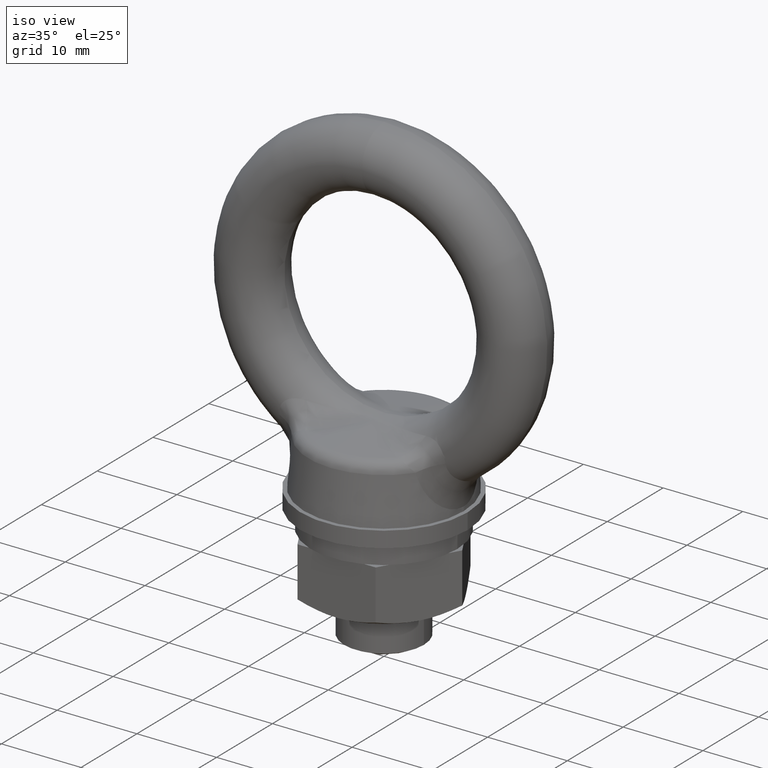
[diagram: clean part render]
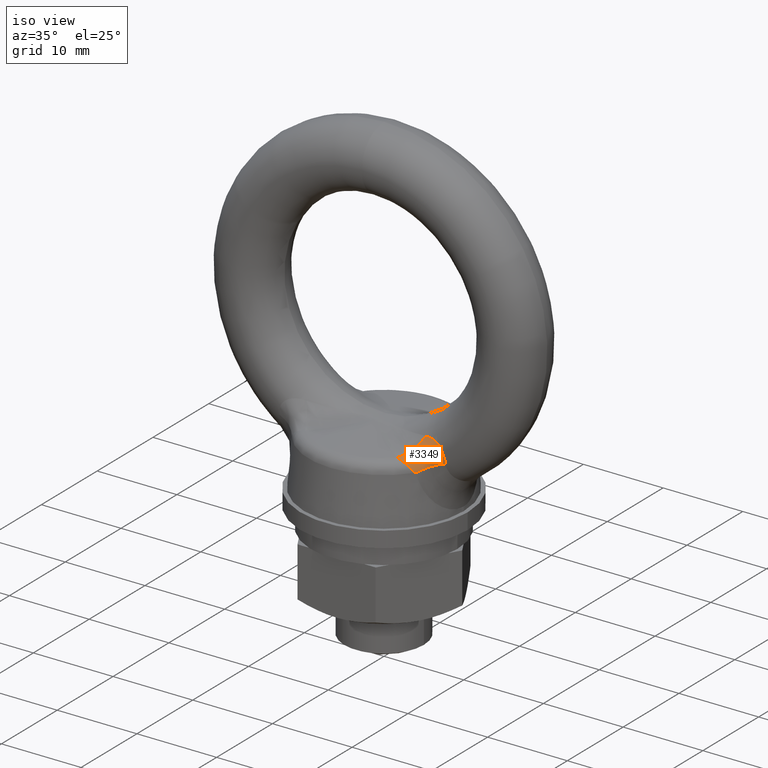
[diagram: same view with one face highlighted and labeled with its STEP entity id]
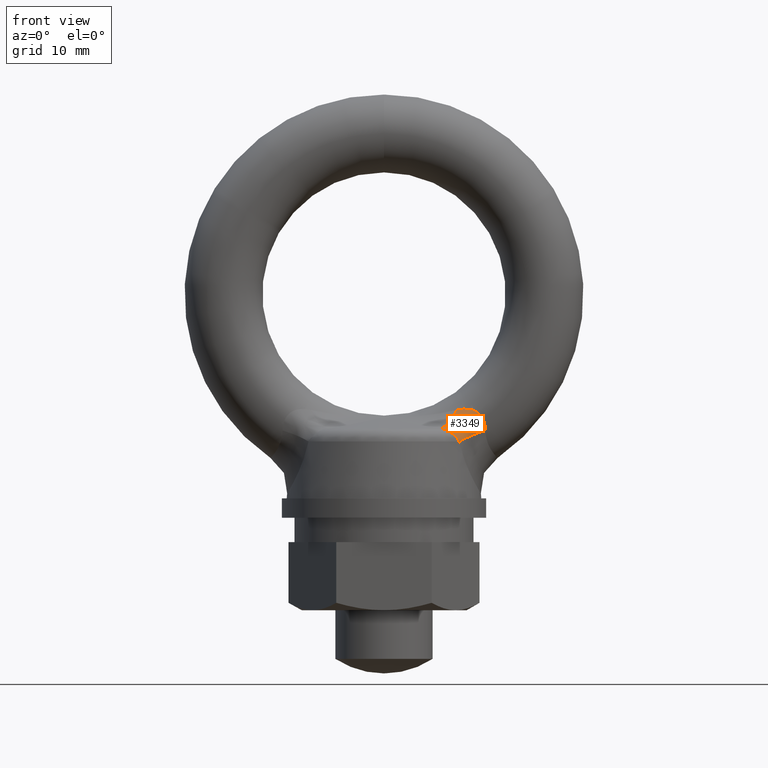
[diagram: same view with one face highlighted and labeled with its STEP entity id]
A machine part, iso view. The second image highlights one B-rep face of the part: STEP entity #3349.
A second angle (front view) of the same face is appended — the face is thin or edge-on in the first view.
In plain terms, the highlighted face is a freeform B-spline surface patch.
Its self-contained STEP definition (entity closure, byte-faithful):
#1272 = CARTESIAN_POINT ( 'NONE',  ( 8.841983585186628900, -3.869420326673615100, -12.51382755219898600 ) ) ;
#2078 = CARTESIAN_POINT ( 'NONE',  ( 8.370045951019761800, -4.089857299387873000, -12.98121149840897600 ) ) ;
#2079 = CARTESIAN_POINT ( 'NONE',  ( 8.606014768103195300, -3.979638813030744100, -12.74751952530398200 ) ) ;
#2397 = CARTESIAN_POINT ( 'NONE',  ( 6.970524031563781100, -5.083405044204566200, -13.74608842458921900 ) ) ;
#2398 = CARTESIAN_POINT ( 'NONE',  ( 7.171332028845564600, -4.825929129782383400, -13.62908521966813100 ) ) ;
#2399 = CARTESIAN_POINT ( 'NONE',  ( 7.381796832693930300, -4.592841371309378800, -13.47506101107012100 ) ) ;
#2400 = CARTESIAN_POINT ( 'NONE',  ( 7.594868894496075400, -4.391949355301658600, -13.28917493161607100 ) ) ;
#2401 = CARTESIAN_POINT ( 'NONE',  ( 7.807940956298220500, -4.191057339293939400, -13.10328885216201800 ) ) ;
#2402 = CARTESIAN_POINT ( 'NONE',  ( 8.023587857649676600, -4.022391634049138400, -12.88556918538355400 ) ) ;
#2403 = CARTESIAN_POINT ( 'NONE',  ( 8.234586550333753900, -3.891602041091073000, -12.64330865533686100 ) ) ;
#2404 = CARTESIAN_POINT ( 'NONE',  ( 8.445585243017831100, -3.760812448133007200, -12.40104812529017100 ) ) ;
#2405 = CARTESIAN_POINT ( 'NONE',  ( 8.651903624734997000, -3.667918870023532600, -12.13428359374502100 ) ) ;
#2406 = CARTESIAN_POINT ( 'NONE',  ( 8.846631172776035600, -3.616033133513496500, -11.85195064580663900 ) ) ;
#2407 = CARTESIAN_POINT ( 'NONE',  ( 6.379380172285253000, -5.918322773583850200, -13.97342918919181400 ) ) ;
#2408 = CARTESIAN_POINT ( 'NONE',  ( 6.554224723277949100, -5.622000095083545400, -13.93425307295124700 ) ) ;
#2409 = CARTESIAN_POINT ( 'NONE',  ( 6.744672345454894500, -5.340187463292431300, -13.85519345982073400 ) ) ;
#2410 = CARTESIAN_POINT ( 'NONE',  ( 6.944364447917087600, -5.082293928401037800, -13.73888996131541300 ) ) ;
#2411 = CARTESIAN_POINT ( 'NONE',  ( 7.144056550379281700, -4.824400393509643300, -13.62258646281009300 ) ) ;
#2412 = CARTESIAN_POINT ( 'NONE',  ( 7.352962946227691500, -4.590464940565468100, -13.46905666020596300 ) ) ;
#2413 = CARTESIAN_POINT ( 'NONE',  ( 7.564108750230354300, -4.388298115192765400, -13.28342654664698400 ) ) ;
#2414 = CARTESIAN_POINT ( 'NONE',  ( 7.775254554233017100, -4.186131289820062700, -13.09779643308800500 ) ) ;
#2415 = CARTESIAN_POINT ( 'NONE',  ( 7.988607848066733300, -4.015763653014839300, -12.88009406976151200 ) ) ;
#2416 = CARTESIAN_POINT ( 'NONE',  ( 8.197045275204727600, -3.882883372959457200, -12.63758801822955000 ) ) ;
#2417 = CARTESIAN_POINT ( 'NONE',  ( 8.405482702342721900, -3.750003092904075100, -12.39508196669758700 ) ) ;
#2418 = CARTESIAN_POINT ( 'NONE',  ( 8.608972753879582400, -3.654630256740430300, -12.12780888592464200 ) ) ;
#2419 = CARTESIAN_POINT ( 'NONE',  ( 8.800721383373836900, -3.599949135509085800, -11.84469238524499900 ) ) ;
#2420 = CARTESIAN_POINT ( 'NONE',  ( 6.282645612345965500, -5.913854930285774400, -13.93393299831904900 ) ) ;
#2421 = CARTESIAN_POINT ( 'NONE',  ( 6.456742029528881800, -5.619177067667079600, -13.89904125018613700 ) ) ;
#2422 = CARTESIAN_POINT ( 'NONE',  ( 6.644497590146483100, -5.337413481955155500, -13.82360078106242400 ) ) ;
#2423 = CARTESIAN_POINT ( 'NONE',  ( 6.839726113330315500, -5.077849465186919700, -13.71009610822018500 ) ) ;
#2424 = CARTESIAN_POINT ( 'NONE',  ( 7.034954636514148000, -4.818285448418684800, -13.59659143537794400 ) ) ;
#2425 = CARTESIAN_POINT ( 'NONE',  ( 7.237627400362735700, -4.580959217589825300, -13.44503925674932700 ) ) ;
#2426 = CARTESIAN_POINT ( 'NONE',  ( 7.441068173167468400, -4.373693154757193100, -13.26043300677063600 ) ) ;
#2427 = CARTESIAN_POINT ( 'NONE',  ( 7.644508945972201100, -4.166427091924560100, -13.07582675679194600 ) ) ;
#2428 = CARTESIAN_POINT ( 'NONE',  ( 7.848687809734954600, -3.989251728877644800, -12.85819360727335500 ) ) ;
#2429 = CARTESIAN_POINT ( 'NONE',  ( 8.046880174688615400, -3.848008700432994800, -12.61470546980030400 ) ) ;
#2430 = CARTESIAN_POINT ( 'NONE',  ( 8.245072539642276200, -3.706765671988345300, -12.37121733232725500 ) ) ;
#2431 = CARTESIAN_POINT ( 'NONE',  ( 8.437249270457934700, -3.601475803608023400, -12.10191005464312000 ) ) ;
#2432 = CARTESIAN_POINT ( 'NONE',  ( 8.617082225765045700, -3.535613143491442400, -11.81565934299844000 ) ) ;
#2433 = CARTESIAN_POINT ( 'NONE',  ( 6.183542535816361200, -5.907311976956903800, -13.90103040921706800 ) ) ;
#2434 = CARTESIAN_POINT ( 'NONE',  ( 6.355532464501028900, -5.614790114137882400, -13.86988913302158000 ) ) ;
#2435 = CARTESIAN_POINT ( 'NONE',  ( 6.539194245067546000, -5.333478536832755500, -13.79801297531653000 ) ) ;
#2436 = CARTESIAN_POINT ( 'NONE',  ( 6.728593712308804000, -5.072472780250167000, -13.68772317356243200 ) ) ;
#2437 = CARTESIAN_POINT ( 'NONE',  ( 6.917993179550061100, -4.811467023667579400, -13.57743337180833600 ) ) ;
#2438 = CARTESIAN_POINT ( 'NONE',  ( 7.113103556665288700, -4.570804062282526600, -13.42874552155987200 ) ) ;
#2439 = CARTESIAN_POINT ( 'NONE',  ( 7.307622806203906600, -4.358267880038724200, -13.24646439833315300 ) ) ;
#2440 = CARTESIAN_POINT ( 'NONE',  ( 7.502142055742524500, -4.145731697794921000, -13.06418327510643200 ) ) ;
#2441 = CARTESIAN_POINT ( 'NONE',  ( 7.696042693052084400, -3.961352428956096600, -12.84833467114093400 ) ) ;
#2442 = CARTESIAN_POINT ( 'NONE',  ( 7.883063485925592100, -3.811097064944404700, -12.60589518167442000 ) ) ;
#2443 = CARTESIAN_POINT ( 'NONE',  ( 8.070084278799100700, -3.660841700932712300, -12.36345569220790500 ) ) ;
#2444 = CARTESIAN_POINT ( 'NONE',  ( 8.250198816058162500, -3.544731579599887300, -12.09445963341230300 ) ) ;
#2451 = CARTESIAN_POINT ( 'NONE',  ( 7.712984351846232700, -4.406145092857843600, -13.31678318877653100 ) ) ;
#2452 = CARTESIAN_POINT ( 'NONE',  ( 7.933161534118582400, -4.210271695263409200, -13.13052384520254300 ) ) ;
#2453 = CARTESIAN_POINT ( 'NONE',  ( 8.157431640018172600, -4.048211121742867600, -12.91358944201815500 ) ) ;
#2454 = CARTESIAN_POINT ( 'NONE',  ( 8.378206794081071600, -3.925446650745108000, -12.67331979886312100 ) ) ;
#2455 = CARTESIAN_POINT ( 'NONE',  ( 8.598981948143970700, -3.802682179747348000, -12.43305015570808400 ) ) ;
#2456 = CARTESIAN_POINT ( 'NONE',  ( 8.816227871252959100, -3.719232874290632700, -12.16948258032621400 ) ) ;
#2457 = CARTESIAN_POINT ( 'NONE',  ( 9.022594381105642800, -3.677922302619829800, -11.89153472671224400 ) ) ;
#2458 = CARTESIAN_POINT ( 'NONE',  ( 6.475398582678666400, -5.922082385669725100, -14.01500711606946400 ) ) ;
#2459 = CARTESIAN_POINT ( 'NONE',  ( 6.650588110095726300, -5.624294011850067500, -13.97138888570006700 ) ) ;
#2460 = CARTESIAN_POINT ( 'NONE',  ( 6.843306504536192500, -5.342573439883157200, -13.88870019687902300 ) ) ;
#2461 = CARTESIAN_POINT ( 'NONE',  ( 7.047047274869645300, -5.086432087716557000, -13.76973269775321100 ) ) ;
#2462 = CARTESIAN_POINT ( 'NONE',  ( 7.250788045203097300, -4.830290735549956700, -13.65076519862739900 ) ) ;
#2463 = CARTESIAN_POINT ( 'NONE',  ( 7.465519693092278300, -4.599768203937126800, -13.49553728150981000 ) ) ;
#2464 = CARTESIAN_POINT ( 'NONE',  ( 7.683992593956031800, -4.402647437691649100, -13.30928969921900800 ) ) ;
#2465 = CARTESIAN_POINT ( 'NONE',  ( 7.902465494819784600, -4.205526671446172300, -13.12304211692820400 ) ) ;
#2466 = CARTESIAN_POINT ( 'NONE',  ( 8.124645873320954300, -4.041838147145044900, -12.90580366395749600 ) ) ;
#2467 = CARTESIAN_POINT ( 'NONE',  ( 8.343032685935792600, -3.917108435376133600, -12.66490873384484000 ) ) ;
#2468 = CARTESIAN_POINT ( 'NONE',  ( 8.561419498550632700, -3.792378723607222800, -12.42401380373218500 ) ) ;
#2469 = CARTESIAN_POINT ( 'NONE',  ( 8.775978983771269200, -3.706627109607389900, -12.15949964011317500 ) ) ;
#2470 = CARTESIAN_POINT ( 'NONE',  ( 8.979467442360276100, -3.662748927889112300, -11.88029680396780200 ) ) ;
#2471 = CARTESIAN_POINT ( 'NONE',  ( 6.451493639434603200, -5.921258924522860000, -14.00429925782372800 ) ) ;
#2472 = CARTESIAN_POINT ( 'NONE',  ( 6.626655725852971000, -5.623807889275142600, -13.96181555101791200 ) ) ;
#2473 = CARTESIAN_POINT ( 'NONE',  ( 6.818868357786086200, -5.342041293606473400, -13.88003583714778900 ) ) ;
#2474 = CARTESIAN_POINT ( 'NONE',  ( 7.021658323371989100, -5.085448289457812800, -13.76171424016747800 ) ) ;
#2475 = CARTESIAN_POINT ( 'NONE',  ( 7.224448288957892000, -4.828855285309153100, -13.64339264318717000 ) ) ;
#2476 = CARTESIAN_POINT ( 'NONE',  ( 7.437784394041179900, -4.597475343085379900, -13.48854736390988200 ) ) ;
#2477 = CARTESIAN_POINT ( 'NONE',  ( 7.654482044185368900, -4.399100725821232200, -13.30239318082600200 ) ) ;
#2478 = CARTESIAN_POINT ( 'NONE',  ( 7.871179694329558000, -4.200726108557085500, -13.11623899774212100 ) ) ;
#2479 = CARTESIAN_POINT ( 'NONE',  ( 8.091205556030423900, -4.035387331217251000, -12.89880454600871800 ) ) ;
#2480 = CARTESIAN_POINT ( 'NONE',  ( 8.307149741584048300, -3.908652565487190400, -12.65741244151218200 ) ) ;
#2481 = CARTESIAN_POINT ( 'NONE',  ( 8.523093927137670900, -3.781917799757129400, -12.41602033701564700 ) ) ;
#2482 = CARTESIAN_POINT ( 'NONE',  ( 8.734923218941476700, -3.693806540605273400, -12.15070771188330000 ) ) ;
#2483 = CARTESIAN_POINT ( 'NONE',  ( 8.935503768035468800, -3.647286141645051900, -11.87040959195012700 ) ) ;
#2484 = CARTESIAN_POINT ( 'NONE',  ( 6.427588696190540900, -5.920435463375994800, -13.99359139957799400 ) ) ;
#2485 = CARTESIAN_POINT ( 'NONE',  ( 6.602723341610215800, -5.623321766700218700, -13.95224221633575800 ) ) ;
#2486 = CARTESIAN_POINT ( 'NONE',  ( 6.794430211035978200, -5.341509147329788700, -13.87137147741655400 ) ) ;
#2487 = CARTESIAN_POINT ( 'NONE',  ( 6.996269371874332100, -5.084464491199068600, -13.75369578258174700 ) ) ;
#2488 = CARTESIAN_POINT ( 'NONE',  ( 7.198108532712685900, -4.827419835068348600, -13.63602008774694100 ) ) ;
#2489 = CARTESIAN_POINT ( 'NONE',  ( 7.410049094990082400, -4.595182482233632900, -13.48155744630995300 ) ) ;
#2490 = CARTESIAN_POINT ( 'NONE',  ( 7.624971494414706000, -4.395554013950815400, -13.29549666243299400 ) ) ;
#2491 = CARTESIAN_POINT ( 'NONE',  ( 7.839893893839331400, -4.195925545667998700, -13.10943587855603600 ) ) ;
#2492 = CARTESIAN_POINT ( 'NONE',  ( 8.057765238739893500, -4.028936515289456300, -12.89180542805993900 ) ) ;
#2493 = CARTESIAN_POINT ( 'NONE',  ( 8.271266797232302200, -3.900196695598246800, -12.64991614917952500 ) ) ;
#2494 = CARTESIAN_POINT ( 'NONE',  ( 8.484768355724710900, -3.771456875907036400, -12.40802687029911100 ) ) ;
#2495 = CARTESIAN_POINT ( 'NONE',  ( 8.693867454111682500, -3.680985971603156800, -12.14191578365342400 ) ) ;
#2496 = CARTESIAN_POINT ( 'NONE',  ( 8.891540093710663200, -3.631823355400992000, -11.86052237993245000 ) ) ;
#2497 = CARTESIAN_POINT ( 'NONE',  ( 6.403563812270075300, -5.919439734408368500, -13.98330323691000400 ) ) ;
#2498 = CARTESIAN_POINT ( 'NONE',  ( 6.578595396715215300, -5.622705851937661600, -13.94305602864252300 ) ) ;
#2499 = CARTESIAN_POINT ( 'NONE',  ( 6.769716034281996600, -5.340880958626748900, -13.86309162951030900 ) ) ;
#2507 = CARTESIAN_POINT ( 'NONE',  ( 8.417592594051566100, -3.466529027691749800, -11.80760270440228000 ) ) ;
#2508 = CARTESIAN_POINT ( 'NONE',  ( 6.078399507527518800, -5.902870334236153500, -13.87465146558483700 ) ) ;
#2509 = CARTESIAN_POINT ( 'NONE',  ( 6.246481570439550000, -5.612226566706882900, -13.84713687844999100 ) ) ;
#2510 = CARTESIAN_POINT ( 'NONE',  ( 6.424325664464072700, -5.331093657039290600, -13.77907050239704600 ) ) ;
#2511 = CARTESIAN_POINT ( 'NONE',  ( 6.606309383649324300, -5.068359408639060400, -13.67260420420535100 ) ) ;
#2512 = CARTESIAN_POINT ( 'NONE',  ( 6.788293102834575900, -4.805625160238831100, -13.56613790601365500 ) ) ;
#2513 = CARTESIAN_POINT ( 'NONE',  ( 6.974391804200546800, -4.561325150765653400, -13.42128610261495300 ) ) ;
#2514 = CARTESIAN_POINT ( 'NONE',  ( 7.158722118654130100, -4.343182739461862100, -13.24262817375204500 ) ) ;
#2515 = CARTESIAN_POINT ( 'NONE',  ( 7.343052433107713400, -4.125040328158069900, -13.06397024488913600 ) ) ;
#2516 = CARTESIAN_POINT ( 'NONE',  ( 7.525589399909154800, -3.933085054364351000, -12.85153038318644500 ) ) ;
#2517 = CARTESIAN_POINT ( 'NONE',  ( 7.700562251498301900, -3.773385438262777800, -12.61202471351379200 ) ) ;
#2518 = CARTESIAN_POINT ( 'NONE',  ( 7.875535103087448100, -3.613685822161204300, -12.37251904384114100 ) ) ;
#2519 = CARTESIAN_POINT ( 'NONE',  ( 8.042920145847626000, -3.486263489172250400, -12.10597999840430600 ) ) ;
#2520 = CARTESIAN_POINT ( 'NONE',  ( 8.197425628788655800, -3.395146799570203400, -11.82083400667604100 ) ) ;
#2521 = CARTESIAN_POINT ( 'NONE',  ( 5.973256479238677300, -5.898428691515404100, -13.84827252195260500 ) ) ;
#2522 = CARTESIAN_POINT ( 'NONE',  ( 6.137430676378070200, -5.609663019275884300, -13.82438462387840200 ) ) ;
#2523 = CARTESIAN_POINT ( 'NONE',  ( 6.309457083860600300, -5.328708777245825700, -13.76012802947756200 ) ) ;
#2524 = CARTESIAN_POINT ( 'NONE',  ( 6.484025054989845500, -5.064246037027953800, -13.65748523484826800 ) ) ;
#2525 = CARTESIAN_POINT ( 'NONE',  ( 6.658593026119090700, -4.799783296810082900, -13.55484244021897500 ) ) ;
#2526 = CARTESIAN_POINT ( 'NONE',  ( 6.835680051735805800, -4.551846239248779300, -13.41382668367003600 ) ) ;
#2527 = CARTESIAN_POINT ( 'NONE',  ( 7.009821431104353600, -4.328097598884999000, -13.23879194917093800 ) ) ;
#2528 = CARTESIAN_POINT ( 'NONE',  ( 7.183962810472901400, -4.104348958521218700, -13.06375721467184000 ) ) ;
#2529 = CARTESIAN_POINT ( 'NONE',  ( 7.355136106766223300, -3.904817679772605300, -12.85472609523195500 ) ) ;
#2530 = CARTESIAN_POINT ( 'NONE',  ( 7.518061017071009800, -3.735673811581151000, -12.61815424535316600 ) ) ;
#2531 = CARTESIAN_POINT ( 'NONE',  ( 7.680985927375796300, -3.566529943389696200, -12.38158239547437800 ) ) ;
#2532 = CARTESIAN_POINT ( 'NONE',  ( 7.835641475637089600, -3.427795398744613500, -12.11750036339631200 ) ) ;
#2533 = CARTESIAN_POINT ( 'NONE',  ( 7.977258663525745400, -3.323764571448657000, -11.83406530894980200 ) ) ;
#2534 = CARTESIAN_POINT ( 'NONE',  ( 5.862227219932805200, -5.895988722175726300, -13.82843329837022500 ) ) ;
#2535 = CARTESIAN_POINT ( 'NONE',  ( 6.020671039960225500, -5.608814587093968700, -13.80804366354918900 ) ) ;
#2536 = CARTESIAN_POINT ( 'NONE',  ( 6.185137665145038700, -5.327761260309878300, -13.74784027699640800 ) ) ;
#2537 = CARTESIAN_POINT ( 'NONE',  ( 6.350687493371931500, -5.061282707225676500, -13.64963009586080600 ) ) ;
#2538 = CARTESIAN_POINT ( 'NONE',  ( 6.516237321598825200, -4.794804154141475600, -13.55141991472520100 ) ) ;
#2539 = CARTESIAN_POINT ( 'NONE',  ( 6.682850155326736500, -4.542933005750183100, -13.41521492572311700 ) ) ;
#2540 = CARTESIAN_POINT ( 'NONE',  ( 6.845523760708395000, -4.313248222266202500, -13.24510723079989600 ) ) ;
#2541 = CARTESIAN_POINT ( 'NONE',  ( 7.008197366090053400, -4.083563438782221900, -13.07499953587667500 ) ) ;
#2542 = CARTESIAN_POINT ( 'NONE',  ( 7.166911910144377500, -3.876093170003783100, -12.87100991691870500 ) ) ;
#2543 = CARTESIAN_POINT ( 'NONE',  ( 7.316903931751510500, -3.697083726423277200, -12.63926889324837300 ) ) ;
#2544 = CARTESIAN_POINT ( 'NONE',  ( 7.466895953358643600, -3.518074282842771800, -12.40752786957804300 ) ) ;
#2545 = CARTESIAN_POINT ( 'NONE',  ( 7.608147178305373800, -3.367547633959028000, -12.14806376571546000 ) ) ;
#2546 = CARTESIAN_POINT ( 'NONE',  ( 7.736419840861835000, -3.250040070214442500, -11.86867577691272000 ) ) ;
#2547 = CARTESIAN_POINT ( 'NONE',  ( 5.738277239094088600, -5.902298598163564900, -13.81535031278957600 ) ) ;
#2548 = CARTESIAN_POINT ( 'NONE',  ( 5.889076455907159300, -5.615588163757675700, -13.79929934248625800 ) ) ;
#2549 = CARTESIAN_POINT ( 'NONE',  ( 6.044227211213622800, -5.333379364127443600, -13.74410216728112200 ) ) ;
#2550 = CARTESIAN_POINT ( 'NONE',  ( 6.199179329253293100, -5.063948663263345500, -13.65137757947816200 ) ) ;
#2551 = CARTESIAN_POINT ( 'NONE',  ( 6.354131447292963300, -4.794517962399248200, -13.55865299167519900 ) ) ;
#2552 = CARTESIAN_POINT ( 'NONE',  ( 6.508866892228571300, -4.537896721010239900, -13.42841178406381200 ) ) ;
#2553 = CARTESIAN_POINT ( 'NONE',  ( 6.658847668293371500, -4.301610985294489700, -13.26447359893113800 ) ) ;
#2554 = CARTESIAN_POINT ( 'NONE',  ( 6.808828444358172600, -4.065325249578740400, -13.10053541379846500 ) ) ;
#2555 = CARTESIAN_POINT ( 'NONE',  ( 6.954037094360201000, -3.849402522297310300, -12.90291933292581000 ) ) ;
#2556 = CARTESIAN_POINT ( 'NONE',  ( 7.090215019118910600, -3.660175266078619800, -12.67742093171488300 ) ) ;
#2557 = CARTESIAN_POINT ( 'NONE',  ( 7.226392943877621100, -3.470948009859929200, -12.45192253050395300 ) ) ;
#2558 = CARTESIAN_POINT ( 'NONE',  ( 7.353524292800448100, -3.308438250036985600, -12.19856805611109600 ) ) ;
#2559 = CARTESIAN_POINT ( 'NONE',  ( 7.467880627820260700, -3.177411983194720500, -11.92478774879418200 ) ) ;
#2560 = B_SPLINE_SURFACE_WITH_KNOTS ( 'NONE', 3, 3, ( 
 ( #2559, #2558, #2557, #2556, #2555, #2554, #2553, #2552, #2551, #2550, #2549, #2548, #2547 ),
 ( #2546, #2545, #2544, #2543, #2542, #2541, #2540, #2539, #2538, #2537, #2536, #2535, #2534 ),
 ( #2533, #2532, #2531, #2530, #2529, #2528, #2527, #2526, #2525, #2524, #2523, #2522, #2521 ),
 ( #2520, #2519, #2518, #2517, #2516, #2515, #2514, #2513, #2512, #2511, #2510, #2509, #2508 ),
 ( #2507, #2444, #2443, #2442, #2441, #2440, #2439, #2438, #2437, #2436, #2435, #2434, #2433 ),
 ( #2432, #2431, #2430, #2429, #2428, #2427, #2426, #2425, #2424, #2423, #2422, #2421, #2420 ),
 ( #2419, #2418, #2417, #2416, #2415, #2414, #2413, #2412, #2411, #2410, #2409, #2408, #2407 ),
 ( #2406, #2405, #2404, #2403, #2402, #2401, #2400, #2399, #2398, #2397, #2499, #2498, #2497 ),
 ( #2496, #2495, #2494, #2493, #2492, #2491, #2490, #2489, #2488, #2487, #2486, #2485, #2484 ),
 ( #2483, #2482, #2481, #2480, #2479, #2478, #2477, #2476, #2475, #2474, #2473, #2472, #2471 ),
 ( #2470, #2469, #2468, #2467, #2466, #2465, #2464, #2463, #2462, #2461, #2460, #2459, #2458 ),
 ( #2457, #2456, #2455, #2454, #2453, #2452, #2451, #2607, #2606, #2605, #2604, #2603, #2602 ),
 ( #2601, #2600, #2599, #2598, #2597, #2596, #2595, #2594, #2593, #2592, #2591, #2590, #2589 ),
 ( #2588, #2587, #2586, #2585, #2584, #2583, #2582, #2581, #2580, #2579, #2578, #2577, #2576 ),
 ( #2575, #2574, #2573, #2572, #2571, #2570, #2569, #2568, #2567, #2566, #2565, #2564, #2563 ),
 ( #2562, #2561, #1272, #2079, #2078, #2830, #2994, #2832, #2831, #2991, #2993, #2992, #2965 ),
 ( #2964, #2963, #2962, #2961, #2960, #2959, #2958, #2957, #2956, #2955, #2954, #2953, #2952 ),
 ( #2951, #2950, #2949, #2735, #2734, #2733, #2732, #2731, #2730, #2729, #2728, #2727, #2726 ),
 ( #2725, #2724, #2723, #2722, #2721, #2720, #2719, #2718, #2717, #2716, #2715, #2714, #2713 ),
 ( #2712, #2711, #2710, #2709, #2708, #2707, #2706, #2705, #2704, #2703, #2702, #2701, #2700 ),
 ( #2699, #2698, #2697, #2696, #2695, #2694, #2693, #2692, #2691, #2690, #2689, #2688, #2990 ),
 ( #2989, #2988, #2987, #2986, #2985, #2984, #2983, #2982, #2981, #2980, #2979, #2978, #2977 ),
 ( #2976, #2975, #2974, #2973, #2972, #2971, #2970, #2969, #2968, #2967, #2966, #8185, #8184 ),
 ( #8183, #8371, #8370, #8369, #8368, #8367, #8366, #8365, #8364, #8363, #8362, #8361, #8360 ),
 ( #8359, #8358, #8357, #8356, #8355, #8354, #8353, #8352, #8351, #8350, #8349, #8348, #8347 ),
 ( #8346, #8345, #8344, #8343, #8342, #8341, #8340, #8339, #8338, #8337, #8336, #8335, #8334 ),
 ( #8333, #8332, #8331, #8330, #8329, #8328, #8327, #8326, #8325, #8324, #8323, #8322, #8321 ),
 ( #8320, #8319, #8318, #8317, #8316, #8315, #8314, #8313, #8312, #8311, #8310, #8309, #8308 ),
 ( #8307, #8306, #8305, #8304, #8303, #8302, #8301, #8300, #8299, #8298, #8297, #8296, #8295 ),
 ( #8294, #8293, #8292, #8291, #8290, #8289, #8288, #8287, #8286, #8285, #8284, #8283, #8282 ),
 ( #8281, #8280, #8279, #8278, #8277, #8276, #8275, #8274, #8273, #8272, #8271, #8270, #8269 ),
 ( #8268, #8267, #8266, #8265, #8264, #8263, #8262, #8261, #8260, #8259, #8258, #8257, #8256 ),
 ( #8255, #8254, #8253, #8252, #8251, #8250, #8249, #8248, #8247, #8246, #8245, #8244, #8243 ),
 ( #8242, #8241, #8240, #8239, #8238, #8237, #8236, #8235, #8234, #8233, #8232, #8231, #8230 ),
 ( #8229, #8228, #8227, #8226, #8225, #8224, #8223, #8222, #8221, #8220, #8219, #8218, #8217 ),
 ( #8216, #8215, #8214, #8213, #8212, #8211, #8210, #8209, #8208, #8207, #8206, #8205, #8204 ),
 ( #8203, #8202, #8201, #8200, #8199, #8198, #8197, #8196, #8195, #8194, #8193, #8192, #8191 ) ),
 .UNSPECIFIED., .F., .F., .F.,
 ( 4, 3, 3, 3, 3, 3, 3, 3, 3, 3, 3, 3, 4 ),
 ( 4, 3, 3, 3, 4 ),
 ( -1.192622389734054900E-017, 0.0009421416521700570700, 0.001884283304340126100, 0.002119818717382643600, 0.002355354130425160700, 0.002826424956510195000, 0.003768566608680264300, 0.004239637434765299400, 0.004710708260850333600, 0.005652849913020402100, 0.006123920739105436300, 0.006594991565190471400, 0.007537133217360540700 ),
 ( 0.0000000000000000000, 0.2500000000000000000, 0.5000000000000000000, 0.7500000000000000000, 1.000000000000000000 ),
 .UNSPECIFIED. ) ;
#2561 = CARTESIAN_POINT ( 'NONE',  ( 9.076609543591166200, -3.800428185016885100, -12.25937692973189600 ) ) ;
#2562 = CARTESIAN_POINT ( 'NONE',  ( 9.301895530572045000, -3.775013951967134900, -11.99284048477012000 ) ) ;
#2563 = CARTESIAN_POINT ( 'NONE',  ( 6.616010876245018900, -5.923992659501234200, -14.08494650743665100 ) ) ;
#2564 = CARTESIAN_POINT ( 'NONE',  ( 6.790319262113658100, -5.624924352186420500, -14.03410125104068500 ) ) ;
#2565 = CARTESIAN_POINT ( 'NONE',  ( 6.984909066059468200, -5.344056224511867900, -13.94597199946845500 ) ) ;
#2566 = CARTESIAN_POINT ( 'NONE',  ( 7.193149813218378900, -5.090958617552330700, -13.82356166117879100 ) ) ;
#2567 = CARTESIAN_POINT ( 'NONE',  ( 7.401390560377290500, -4.837861010592793500, -13.70115132288912800 ) ) ;
#2568 = CARTESIAN_POINT ( 'NONE',  ( 7.623249452369326400, -4.612573788016942600, -13.54447917774854700 ) ) ;
#2569 = CARTESIAN_POINT ( 'NONE',  ( 7.851166861242798900, -4.422773432659889500, -13.35888369050903700 ) ) ;
#2570 = CARTESIAN_POINT ( 'NONE',  ( 8.079084270116272400, -4.232973077302836500, -13.17328820326952900 ) ) ;
#2571 = CARTESIAN_POINT ( 'NONE',  ( 8.313024298517758500, -4.078689483455100600, -12.95879860579092800 ) ) ;
#2572 = CARTESIAN_POINT ( 'NONE',  ( 8.545015680175003700, -3.965179758725605000, -12.72272345923051000 ) ) ;
#2573 = CARTESIAN_POINT ( 'NONE',  ( 8.777007061832250700, -3.851670033996109400, -12.48664831267009100 ) ) ;
#2574 = CARTESIAN_POINT ( 'NONE',  ( 9.007013257866168100, -3.778952056790115100, -12.22902479972771400 ) ) ;
#2575 = CARTESIAN_POINT ( 'NONE',  ( 9.227197057249311400, -3.749503667031028900, -11.95863124825938300 ) ) ;
#2576 = CARTESIAN_POINT ( 'NONE',  ( 6.569951619108970900, -5.924022688382406100, -14.06063819949583200 ) ) ;
#2577 = CARTESIAN_POINT ( 'NONE',  ( 6.744749244873073500, -5.625216956897027400, -14.01227089236932600 ) ) ;
#2578 = CARTESIAN_POINT ( 'NONE',  ( 6.938942454412346800, -5.343940800435058600, -13.92594127094701800 ) ) ;
#2579 = CARTESIAN_POINT ( 'NONE',  ( 7.145926731918254200, -5.089760575505373200, -13.80458523065053100 ) ) ;
#2580 = CARTESIAN_POINT ( 'NONE',  ( 7.352911009424162500, -4.835580350575686900, -13.68322919035404400 ) ) ;
#2581 = CARTESIAN_POINT ( 'NONE',  ( 7.572653879217826400, -4.608535941062686300, -13.52686577158135800 ) ) ;
#2582 = CARTESIAN_POINT ( 'NONE',  ( 7.797682077259577400, -4.416349433542611000, -13.34081290088147200 ) ) ;
#2583 = CARTESIAN_POINT ( 'NONE',  ( 8.022710275301326600, -4.224162926022534800, -13.15476003018158700 ) ) ;
#2584 = CARTESIAN_POINT ( 'NONE',  ( 8.252988496486246100, -4.066864478693586800, -12.93904690080983100 ) ) ;
#2585 = CARTESIAN_POINT ( 'NONE',  ( 8.480685346152274200, -3.949804255240863400, -12.70101010852391700 ) ) ;
#2586 = CARTESIAN_POINT ( 'NONE',  ( 8.708382195818302300, -3.832744031788140000, -12.46297331623800100 ) ) ;
#2587 = CARTESIAN_POINT ( 'NONE',  ( 8.933461951633354700, -3.755940403992325200, -12.20265021243679700 ) ) ;
#2588 = CARTESIAN_POINT ( 'NONE',  ( 9.148270164105284200, -3.722006018266045900, -11.92889475658209600 ) ) ;
#2589 = CARTESIAN_POINT ( 'NONE',  ( 6.522814122967266900, -5.923163806918254600, -14.03765653712434500 ) ) ;
#2590 = CARTESIAN_POINT ( 'NONE',  ( 6.697840617757713700, -5.624839384921888700, -13.99167510355188200 ) ) ;
#2591 = CARTESIAN_POINT ( 'NONE',  ( 6.891334671253178000, -5.343320400915750700, -13.90716343558874400 ) ) ;
#2592 = CARTESIAN_POINT ( 'NONE',  ( 7.096738203055071600, -5.088148358101042500, -13.78698588127616600 ) ) ;
#2593 = CARTESIAN_POINT ( 'NONE',  ( 7.302141734856966200, -4.832976315286334300, -13.66680832696358800 ) ) ;
#2594 = CARTESIAN_POINT ( 'NONE',  ( 7.519422739455198000, -4.604190973989081400, -13.51098361209413300 ) ) ;
#2595 = CARTESIAN_POINT ( 'NONE',  ( 7.741216926984014500, -4.409546539752765800, -13.32479309281151100 ) ) ;
#2596 = CARTESIAN_POINT ( 'NONE',  ( 7.963011114512830200, -4.214902105516451100, -13.13860257352889100 ) ) ;
#2597 = CARTESIAN_POINT ( 'NONE',  ( 8.189283925507529800, -4.054428907393107000, -12.92207526161538300 ) ) ;
#2598 = CARTESIAN_POINT ( 'NONE',  ( 8.412366311438138000, -3.933565852243693200, -12.68254990208338700 ) ) ;
#2599 = CARTESIAN_POINT ( 'NONE',  ( 8.635448697368746100, -3.812702797094278800, -12.44302454255139000 ) ) ;
#2600 = CARTESIAN_POINT ( 'NONE',  ( 8.855305898046424300, -3.731468717524530000, -12.18053845769640900 ) ) ;
#2601 = CARTESIAN_POINT ( 'NONE',  ( 9.064486308772190500, -3.692616874501902100, -11.90398807000219600 ) ) ;
#2602 = CARTESIAN_POINT ( 'NONE',  ( 6.499245374896415400, -5.922734366186179300, -14.02616570593860200 ) ) ;
#2603 = CARTESIAN_POINT ( 'NONE',  ( 6.674386304200035100, -5.624650598934319800, -13.98137720914316200 ) ) ;
#2604 = CARTESIAN_POINT ( 'NONE',  ( 6.867530779673593600, -5.343010201156096700, -13.89777451790960900 ) ) ;
#2605 = CARTESIAN_POINT ( 'NONE',  ( 7.072143938623480800, -5.087342249398877100, -13.77818620658898600 ) ) ;
#2606 = CARTESIAN_POINT ( 'NONE',  ( 7.276757097573368000, -4.831674297641658500, -13.65859789526836100 ) ) ;
#2607 = CARTESIAN_POINT ( 'NONE',  ( 7.492807169573882900, -4.602018490452279000, -13.50304253235052000 ) ) ;
#2619 = FACE_OUTER_BOUND ( 'NONE', #3350, .T. ) ;
#2620 = CARTESIAN_POINT ( 'NONE',  ( 5.738277239094090400, -5.902298598163569400, -13.81535031278956000 ) ) ;
#2688 = CARTESIAN_POINT ( 'NONE',  ( 7.174354053259180300, -5.593728229040316100, -14.26709934155193000 ) ) ;
#2689 = CARTESIAN_POINT ( 'NONE',  ( 7.366726719924223200, -5.323084025380176800, -14.16431771145356500 ) ) ;
#2690 = CARTESIAN_POINT ( 'NONE',  ( 7.579197178982359300, -5.083654899802198200, -14.03641945493108200 ) ) ;
#2691 = CARTESIAN_POINT ( 'NONE',  ( 7.791667638040495400, -4.844225774224219600, -13.90852119840859800 ) ) ;
#2692 = CARTESIAN_POINT ( 'NONE',  ( 8.024204353548299200, -4.636047259309166600, -13.75552529917953500 ) ) ;
#2693 = CARTESIAN_POINT ( 'NONE',  ( 8.269113179448144300, -4.466006858492630900, -13.58249366418434100 ) ) ;
#2694 = CARTESIAN_POINT ( 'NONE',  ( 8.514022005347989400, -4.295966457676095200, -13.40946202918914700 ) ) ;
#2695 = CARTESIAN_POINT ( 'NONE',  ( 8.771266588183571900, -4.164089404445889800, -13.21642033502374700 ) ) ;
#2696 = CARTESIAN_POINT ( 'NONE',  ( 9.032334935285799600, -4.074738626433694200, -13.00975484128859900 ) ) ;
#2697 = CARTESIAN_POINT ( 'NONE',  ( 9.293403282388029000, -3.985387848421498600, -12.80308934755345300 ) ) ;
#2698 = CARTESIAN_POINT ( 'NONE',  ( 9.558256638795127100, -3.938576603252146300, -12.58283071753345100 ) ) ;
#2699 = CARTESIAN_POINT ( 'NONE',  ( 9.818130915326481300, -3.935853310742969000, -12.35626518675196000 ) ) ;
#2700 = CARTESIAN_POINT ( 'NONE',  ( 6.966442880041963500, -5.894499767276769800, -14.30952975989994700 ) ) ;
#2701 = CARTESIAN_POINT ( 'NONE',  ( 7.133487358212513600, -5.600095902402884500, -14.23785484906914800 ) ) ;
#2702 = CARTESIAN_POINT ( 'NONE',  ( 7.326487531871815200, -5.327689268623149800, -14.13648793061708500 ) ) ;
#2703 = CARTESIAN_POINT ( 'NONE',  ( 7.539010704370738800, -5.086359025101973700, -14.00880790951830500 ) ) ;
#2704 = CARTESIAN_POINT ( 'NONE',  ( 7.751533876869661600, -4.845028781580797500, -13.88112788841952400 ) ) ;
#2705 = CARTESIAN_POINT ( 'NONE',  ( 7.983548033284236600, -4.634811279434053700, -13.72715399918614300 ) ) ;
#2706 = CARTESIAN_POINT ( 'NONE',  ( 8.227319875149756700, -4.462712792105283400, -13.55201812299731400 ) ) ;
#2707 = CARTESIAN_POINT ( 'NONE',  ( 8.471091717015276900, -4.290614304776512200, -13.37688224680848700 ) ) ;
#2708 = CARTESIAN_POINT ( 'NONE',  ( 8.726584519788987700, -4.156660753609032500, -13.18061076302627100 ) ) ;
#2709 = CARTESIAN_POINT ( 'NONE',  ( 8.985282176297655400, -4.065316447339308900, -12.96974493392591700 ) ) ;
#2710 = CARTESIAN_POINT ( 'NONE',  ( 9.243979832806324700, -3.973972141069585600, -12.75887910482556000 ) ) ;
#2711 = CARTESIAN_POINT ( 'NONE',  ( 9.505843367779714700, -3.925250835892338600, -12.53345068856170700 ) ) ;
#2712 = CARTESIAN_POINT ( 'NONE',  ( 9.762144088647369600, -3.920775997391663800, -12.30097239681300400 ) ) ;
#2713 = CARTESIAN_POINT ( 'NONE',  ( 6.923932340200758900, -5.900884327596257300, -14.27897457564423100 ) ) ;
#2714 = CARTESIAN_POINT ( 'NONE',  ( 7.092064749867283500, -5.605297105902980800, -14.20991695056694900 ) ) ;
#2715 = CARTESIAN_POINT ( 'NONE',  ( 7.285574720321465100, -5.331371221626502800, -14.11006116683205900 ) ) ;
#2716 = CARTESIAN_POINT ( 'NONE',  ( 7.497974920462190200, -5.088289911704409400, -13.98275484280738500 ) ) ;
#2717 = CARTESIAN_POINT ( 'NONE',  ( 7.710375120602915200, -4.845208601782315900, -13.85544851878271000 ) ) ;
#2718 = CARTESIAN_POINT ( 'NONE',  ( 7.941633176340478600, -4.633008916726462100, -13.70071105852884800 ) ) ;
#2719 = CARTESIAN_POINT ( 'NONE',  ( 8.183996269699415300, -4.458804751563952200, -13.52372996290714900 ) ) ;
#2720 = CARTESIAN_POINT ( 'NONE',  ( 8.426359363058351100, -4.284600586401441400, -13.34674886728545200 ) ) ;
#2721 = CARTESIAN_POINT ( 'NONE',  ( 8.679790552997547000, -4.148418493373123200, -13.14755111179717800 ) ) ;
#2722 = CARTESIAN_POINT ( 'NONE',  ( 8.935793677605421000, -4.054823913347200400, -12.93281470787201000 ) ) ;
#2723 = CARTESIAN_POINT ( 'NONE',  ( 9.191796802213295000, -3.961229333321278900, -12.71807830394684300 ) ) ;
#2724 = CARTESIAN_POINT ( 'NONE',  ( 9.450332841431885500, -3.910236532006202900, -12.48783598175923100 ) ) ;
#2725 = CARTESIAN_POINT ( 'NONE',  ( 9.702734495669103500, -3.903555019176214300, -12.24980650729324300 ) ) ;
#2726 = CARTESIAN_POINT ( 'NONE',  ( 6.838911260518348600, -5.913653448235230300, -14.21786420713279900 ) ) ;
#2727 = CARTESIAN_POINT ( 'NONE',  ( 7.009219533176821700, -5.615699512903175300, -14.15404115356255400 ) ) ;
#2728 = CARTESIAN_POINT ( 'NONE',  ( 7.203749097220766700, -5.338735127633207800, -14.05720763926200300 ) ) ;
#2729 = CARTESIAN_POINT ( 'NONE',  ( 7.415903352645094600, -5.092151684909278900, -13.93064870938554400 ) ) ;
#2730 = CARTESIAN_POINT ( 'NONE',  ( 7.628057608069421600, -4.845568242185350100, -13.80408977950908400 ) ) ;
#2731 = CARTESIAN_POINT ( 'NONE',  ( 7.857803462452960000, -4.629404191311278000, -13.64782517721425800 ) ) ;
#2732 = CARTESIAN_POINT ( 'NONE',  ( 8.097349058798728900, -4.450988670481289800, -13.46715364272682100 ) ) ;
#2733 = CARTESIAN_POINT ( 'NONE',  ( 8.336894655144496000, -4.272573149651301500, -13.28648210823938300 ) ) ;
#2734 = CARTESIAN_POINT ( 'NONE',  ( 8.586202619414665400, -4.131933972901303600, -13.08143180933899100 ) ) ;
#2735 = CARTESIAN_POINT ( 'NONE',  ( 8.836816680220948700, -4.033838845362984300, -12.85895425576419800 ) ) ;
#2830 = CARTESIAN_POINT ( 'NONE',  ( 8.132771463862877000, -4.241284760049376600, -13.19410799237626900 ) ) ;
#2831 = CARTESIAN_POINT ( 'NONE',  ( 7.448111193965474700, -4.839728165095306300, -13.72056052861411500 ) ) ;
#2832 = CARTESIAN_POINT ( 'NONE',  ( 7.671785922544539300, -4.616234965909374200, -13.56379707319724100 ) ) ;
#2949 = CARTESIAN_POINT ( 'NONE',  ( 9.087430741027231900, -3.935743717824664600, -12.63647670218940700 ) ) ;
#2950 = CARTESIAN_POINT ( 'NONE',  ( 9.339311788736225100, -3.880207924233932500, -12.39660656815427400 ) ) ;
#2951 = CARTESIAN_POINT ( 'NONE',  ( 9.583915309712573100, -3.869113062745315600, -12.14747472825372500 ) ) ;
#2952 = CARTESIAN_POINT ( 'NONE',  ( 6.751706193364496400, -5.920512478240482300, -14.16167283582929000 ) ) ;
#2953 = CARTESIAN_POINT ( 'NONE',  ( 6.924024074725069900, -5.621460747473157000, -14.10320036580510600 ) ) ;
#2954 = CARTESIAN_POINT ( 'NONE',  ( 7.119118402899795600, -5.342433870848707600, -14.00977256836826400 ) ) ;
#2955 = CARTESIAN_POINT ( 'NONE',  ( 7.330335432020820700, -5.092948172474519800, -13.88457575421617700 ) ) ;
#2956 = CARTESIAN_POINT ( 'NONE',  ( 7.541552461141845000, -4.843462474100332000, -13.75937894006409000 ) ) ;
#2957 = CARTESIAN_POINT ( 'NONE',  ( 7.768858862894966900, -4.623557321694238300, -13.60243286409462500 ) ) ;
#2958 = CARTESIAN_POINT ( 'NONE',  ( 8.004502357125527800, -4.440732723618348000, -13.41909021734218900 ) ) ;
#2959 = CARTESIAN_POINT ( 'NONE',  ( 8.240145851356089700, -4.257908125542456900, -13.23574757058975300 ) ) ;
#2960 = CARTESIAN_POINT ( 'NONE',  ( 8.484089256023773700, -4.112192931253416900, -13.02603728364507400 ) ) ;
#2961 = CARTESIAN_POINT ( 'NONE',  ( 8.728012943959578600, -4.008556921641021700, -12.79711165745092500 ) ) ;
#2962 = CARTESIAN_POINT ( 'NONE',  ( 8.971936631895385300, -3.904920912028625700, -12.56818603125677700 ) ) ;
#2963 = CARTESIAN_POINT ( 'NONE',  ( 9.215802115041164200, -3.843380441470424500, -12.32008118974026100 ) ) ;
#2964 = CARTESIAN_POINT ( 'NONE',  ( 9.451292477217517500, -3.826034521839346300, -12.06125895779159800 ) ) ;
#2965 = CARTESIAN_POINT ( 'NONE',  ( 6.661242648618177500, -5.922832599080983600, -14.11052195023419700 ) ) ;
#2966 = CARTESIAN_POINT ( 'NONE',  ( 7.445839672649556800, -5.311772897095760700, -14.22281563029631200 ) ) ;
#2967 = CARTESIAN_POINT ( 'NONE',  ( 7.657912596812888500, -5.076432803675812600, -14.09483978650172100 ) ) ;
#2968 = CARTESIAN_POINT ( 'NONE',  ( 7.869985520976220200, -4.841092710255863600, -13.96686394270713000 ) ) ;
#2969 = CARTESIAN_POINT ( 'NONE',  ( 8.103138610450269400, -4.637091915292261400, -13.81625536670061800 ) ) ;
#2970 = CARTESIAN_POINT ( 'NONE',  ( 8.349791708621731700, -4.471062110887800100, -13.64791016779501300 ) ) ;
#2971 = CARTESIAN_POINT ( 'NONE',  ( 8.596444806793192200, -4.305032306483338900, -13.47956496888940800 ) ) ;
#2972 = CARTESIAN_POINT ( 'NONE',  ( 8.856562576136640900, -4.176997272716480600, -13.29350725799095300 ) ) ;
#2973 = CARTESIAN_POINT ( 'NONE',  ( 9.121687882934475400, -4.091119018173078100, -13.09578497309891000 ) ) ;
#2974 = CARTESIAN_POINT ( 'NONE',  ( 9.386813189732309900, -4.005240763629676500, -12.89806268820686700 ) ) ;
#2975 = CARTESIAN_POINT ( 'NONE',  ( 9.656908047161030200, -3.961531586654056800, -12.68870414325860300 ) ) ;
#2976 = CARTESIAN_POINT ( 'NONE',  ( 9.923190613947134900, -3.961412074503883200, -12.47451424815179000 ) ) ;
#2977 = CARTESIAN_POINT ( 'NONE',  ( 7.049838882698249000, -5.877167313253344200, -14.37437635962027100 ) ) ;
#2978 = CARTESIAN_POINT ( 'NONE',  ( 7.214615673946776800, -5.586073404356927300, -14.29761987482081400 ) ) ;
#2979 = CARTESIAN_POINT ( 'NONE',  ( 7.406283196286890000, -5.317428461237968300, -14.19356667087493800 ) ) ;
#2980 = CARTESIAN_POINT ( 'NONE',  ( 7.618554887897624400, -5.080043851739005400, -14.06562962071640200 ) ) ;
#2981 = CARTESIAN_POINT ( 'NONE',  ( 7.830826579508358700, -4.842659242240041600, -13.93769257055786400 ) ) ;
#2982 = CARTESIAN_POINT ( 'NONE',  ( 8.063671481999284300, -4.636569587300714400, -13.78589033294007700 ) ) ;
#2983 = CARTESIAN_POINT ( 'NONE',  ( 8.309452444034937100, -4.468534484690216000, -13.61520191598967600 ) ) ;
#2984 = CARTESIAN_POINT ( 'NONE',  ( 8.555233406070591700, -4.300499382079716600, -13.44451349903927600 ) ) ;
#2985 = CARTESIAN_POINT ( 'NONE',  ( 8.813914582160105500, -4.170543338581185600, -13.25496379650734900 ) ) ;
#2986 = CARTESIAN_POINT ( 'NONE',  ( 9.077011409110138400, -4.082928822303386200, -13.05276990719375400 ) ) ;
#2987 = CARTESIAN_POINT ( 'NONE',  ( 9.340108236060169500, -3.995314306025587600, -12.85057601788016000 ) ) ;
#2988 = CARTESIAN_POINT ( 'NONE',  ( 9.607582342978080400, -3.950054094953101600, -12.63576743039602800 ) ) ;
#2989 = CARTESIAN_POINT ( 'NONE',  ( 9.870660764636808100, -3.948632692623426100, -12.41538971745187500 ) ) ;
#2990 = CARTESIAN_POINT ( 'NONE',  ( 7.008444105279274100, -5.886633148407146800, -14.34136319217726700 ) ) ;
#2991 = CARTESIAN_POINT ( 'NONE',  ( 7.238878352819193100, -5.091621802526393700, -13.84389969219125400 ) ) ;
#2992 = CARTESIAN_POINT ( 'NONE',  ( 6.834887532984129000, -5.623769817281999700, -14.05713428929549200 ) ) ;
#2993 = CARTESIAN_POINT ( 'NONE',  ( 7.029645511672910600, -5.343515439957481100, -13.96723885576839100 ) ) ;
#2994 = CARTESIAN_POINT ( 'NONE',  ( 7.902278693203708600, -4.428759862979375400, -13.37895253278675500 ) ) ;
#3000 = VERTEX_POINT ( 'NONE', #3404 ) ;
#3001 = EDGE_CURVE ( 'NONE', #3000, #3469, #3668, .T. ) ;
#3276 = ORIENTED_EDGE ( 'NONE', *, *, #3277, .F. ) ;
#3277 = EDGE_CURVE ( 'NONE', #3469, #3451, #5390, .T. ) ;
#3285 = ORIENTED_EDGE ( 'NONE', *, *, #3462, .F. ) ;
#3345 = VERTEX_POINT ( 'NONE', #2620 ) ;
#3349 = ADVANCED_FACE ( 'NONE', ( #2619 ), #2560, .F. ) ;
#3350 = EDGE_LOOP ( 'NONE', ( #3351, #3285, #3276, #3543 ) ) ;
#3351 = ORIENTED_EDGE ( 'NONE', *, *, #3352, .F. ) ;
#3352 = EDGE_CURVE ( 'NONE', #3345, #3000, #8190, .T. ) ;
#3404 = CARTESIAN_POINT ( 'NONE',  ( 7.467880627820259900, -3.177411983194720500, -11.92478774879418100 ) ) ;
#3451 = VERTEX_POINT ( 'NONE', #5801 ) ;
#3462 = EDGE_CURVE ( 'NONE', #3451, #3345, #5723, .T. ) ;
#3469 = VERTEX_POINT ( 'NONE', #5703 ) ;
#3543 = ORIENTED_EDGE ( 'NONE', *, *, #3001, .F. ) ;
#3656 = CARTESIAN_POINT ( 'NONE',  ( 9.371571114221660900, -3.799933109588146800, -12.01584183172543900 ) ) ;
#3657 = CARTESIAN_POINT ( 'NONE',  ( 9.210387068143349500, -3.743852871213024300, -11.94509950835888100 ) ) ;
#3658 = CARTESIAN_POINT ( 'NONE',  ( 8.870073730831741400, -3.624354931211921600, -11.84880389473544000 ) ) ;
#3659 = CARTESIAN_POINT ( 'NONE',  ( 8.694142244592605100, -3.562135812621704200, -11.82451885191106200 ) ) ;
#3660 = CARTESIAN_POINT ( 'NONE',  ( 8.167808851933553900, -3.382431734494454100, -11.80245496108964400 ) ) ;
#3666 = CARTESIAN_POINT ( 'NONE',  ( 7.819170671180418500, -3.272420542836152400, -11.85138477418946200 ) ) ;
#3667 = CARTESIAN_POINT ( 'NONE',  ( 7.467880627820259900, -3.177411983194720500, -11.92478774879418100 ) ) ;
#3668 = B_SPLINE_CURVE_WITH_KNOTS ( 'NONE', 3,
 ( #3667, #3666, #3660, #3659, #3658, #3657, #3656, #3721, #3720, #3719, #3718, #3717, #3716, #3715, #3714, #3713 ),
 .UNSPECIFIED., .F., .F.,
 ( 4, 2, 2, 2, 2, 2, 2, 4 ),
 ( 0.0000000000000000000, 0.001104942719667448500, 0.001657414079501172900, 0.002209885439334897400, 0.002762356799168622400, 0.003314828159002346100, 0.003867299518836070700, 0.004419770878669794900 ),
 .UNSPECIFIED. ) ;
#3713 = CARTESIAN_POINT ( 'NONE',  ( 10.43268733045542100, -3.877413604260050200, -14.02865645472643900 ) ) ;
#3714 = CARTESIAN_POINT ( 'NONE',  ( 10.43069575413806400, -3.914878874913652900, -13.84591191370530600 ) ) ;
#3715 = CARTESIAN_POINT ( 'NONE',  ( 10.41281916211034700, -3.945339802802970900, -13.66448707493625200 ) ) ;
#3716 = CARTESIAN_POINT ( 'NONE',  ( 10.34106645789569100, -3.988080256175551100, -13.30429771594217700 ) ) ;
#3717 = CARTESIAN_POINT ( 'NONE',  ( 10.28656667040983100, -4.000254314679343900, -13.12446710552936900 ) ) ;
#3718 = CARTESIAN_POINT ( 'NONE',  ( 10.13591886857060900, -3.999737527053294000, -12.78244626446782700 ) ) ;
#3719 = CARTESIAN_POINT ( 'NONE',  ( 10.04178324694537500, -3.987237201959254100, -12.62378492142148000 ) ) ;
#3720 = CARTESIAN_POINT ( 'NONE',  ( 9.810407472162355100, -3.935857897835500600, -12.33777499356284800 ) ) ;
#3721 = CARTESIAN_POINT ( 'NONE',  ( 9.673908851695804500, -3.896845236199684600, -12.21307270359603500 ) ) ;
#5386 = DIRECTION ( 'NONE',  ( 0.9629895224130452500, 0.0000000000000000000, 0.2695388278573145900 ) ) ;
#5387 = DIRECTION ( 'NONE',  ( -0.2622969262234499700, -0.2302468729556810000, 0.9371161614164279500 ) ) ;
#5388 = CARTESIAN_POINT ( 'NONE',  ( 11.01909696665672000, -7.754827208520100400, -14.81719147618672000 ) ) ;
#5389 = AXIS2_PLACEMENT_3D ( 'NONE', #5388, #5387, #5386 ) ;
#5390 = CIRCLE ( 'NONE', #5389, 3.999999999999999600 ) ;
#5703 = CARTESIAN_POINT ( 'NONE',  ( 10.43268733045542100, -3.877413604260050200, -14.02865645472643900 ) ) ;
#5708 = CARTESIAN_POINT ( 'NONE',  ( 5.738277239094090400, -5.902298598163569400, -13.81535031278956000 ) ) ;
#5709 = CARTESIAN_POINT ( 'NONE',  ( 5.955701795732194300, -5.891230246399215900, -13.83829958894209400 ) ) ;
#5710 = CARTESIAN_POINT ( 'NONE',  ( 6.165120129816215500, -5.908085395352477700, -13.88745976686825400 ) ) ;
#5711 = CARTESIAN_POINT ( 'NONE',  ( 6.466491116976688300, -5.922500116127396000, -14.00831314671328100 ) ) ;
#5712 = CARTESIAN_POINT ( 'NONE',  ( 6.565290063302951400, -5.925234134275467700, -14.05635781975000700 ) ) ;
#5713 = CARTESIAN_POINT ( 'NONE',  ( 6.753845663793439900, -5.920515924516539700, -14.16279372250662000 ) ) ;
#5714 = CARTESIAN_POINT ( 'NONE',  ( 6.844339240862091800, -5.913202836315317500, -14.22138131700170400 ) ) ;
#5715 = CARTESIAN_POINT ( 'NONE',  ( 7.105868058312067200, -5.872780963033085800, -14.41056510365524600 ) ) ;
#5716 = CARTESIAN_POINT ( 'NONE',  ( 7.264731714705562600, -5.820942184945743700, -14.55290027317475700 ) ) ;
#5717 = CARTESIAN_POINT ( 'NONE',  ( 7.543092489526348000, -5.672044638866863900, -14.85063994365649300 ) ) ;
#5718 = CARTESIAN_POINT ( 'NONE',  ( 7.663354475831887700, -5.575190913131304900, -15.00660461722228500 ) ) ;
#5719 = CARTESIAN_POINT ( 'NONE',  ( 7.760410120876260400, -5.461485613272089700, -15.16582361561554900 ) ) ;
#5723 = B_SPLINE_CURVE_WITH_KNOTS ( 'NONE', 3,
 ( #5719, #5718, #5717, #5716, #5715, #5714, #5713, #5712, #5711, #5710, #5709, #5708 ),
 .UNSPECIFIED., .F., .F.,
 ( 4, 2, 2, 2, 2, 4 ),
 ( 4.670885906470169200E-018, 0.0006516634225218154100, 0.001303326845043626300, 0.001629158556304530800, 0.001954990267565434900, 0.002606653690087241300 ),
 .UNSPECIFIED. ) ;
#5801 = CARTESIAN_POINT ( 'NONE',  ( 7.760410120876260400, -5.461485613272089700, -15.16582361561554900 ) ) ;
#8183 = CARTESIAN_POINT ( 'NONE',  ( 9.971640734858374000, -3.971745416616295100, -12.53674495078327500 ) ) ;
#8184 = CARTESIAN_POINT ( 'NONE',  ( 7.091233660117223900, -5.867701478099542500, -14.40738952706327500 ) ) ;
#8185 = CARTESIAN_POINT ( 'NONE',  ( 7.254877294634373400, -5.578418579673539500, -14.32814040808969800 ) ) ;
#8186 = DIRECTION ( 'NONE',  ( 0.4588440582081805800, 0.8885168148364146500, 0.0000000000000000000 ) ) ;
#8187 = DIRECTION ( 'NONE',  ( 0.8784879561833139900, -0.4536649978609300100, -0.1498231642861223800 ) ) ;
#8188 = CARTESIAN_POINT ( 'NONE',  ( 6.178227197134350300, -6.354823966389430400, -9.865456032491371400 ) ) ;
#8189 = AXIS2_PLACEMENT_3D ( 'NONE', #8188, #8187, #8186 ) ;
#8190 = CIRCLE ( 'NONE', #8189, 4.000000000000001800 ) ;
#8191 = CARTESIAN_POINT ( 'NONE',  ( 7.760410120876254100, -5.461485613272095000, -15.16582361561557800 ) ) ;
#8192 = CARTESIAN_POINT ( 'NONE',  ( 7.907405070831250000, -5.238014061372737700, -15.06977367723131400 ) ) ;
#8193 = CARTESIAN_POINT ( 'NONE',  ( 8.079164174340636600, -5.031981815471817200, -14.97107709183859600 ) ) ;
#8194 = CARTESIAN_POINT ( 'NONE',  ( 8.271811938712202700, -4.848037691539114600, -14.87196080338171100 ) ) ;
#8195 = CARTESIAN_POINT ( 'NONE',  ( 8.464459703083766900, -4.664093567606411900, -14.77284451492482700 ) ) ;
#8196 = CARTESIAN_POINT ( 'NONE',  ( 8.677982900853551800, -4.502250195501800600, -14.67331532886626100 ) ) ;
#8197 = CARTESIAN_POINT ( 'NONE',  ( 8.907563693690621100, -4.366159333956315600, -14.57561897556528100 ) ) ;
#8198 = CARTESIAN_POINT ( 'NONE',  ( 9.137144486527690300, -4.230068472410829700, -14.47792262226429800 ) ) ;
#8199 = CARTESIAN_POINT ( 'NONE',  ( 9.382767111094883800, -4.119739465612666700, -14.38206580968866200 ) ) ;
#8200 = CARTESIAN_POINT ( 'NONE',  ( 9.638889452493471000, -4.037661726063690000, -14.29021140646684400 ) ) ;
#8201 = CARTESIAN_POINT ( 'NONE',  ( 9.895011793892058100, -3.955583986514713300, -14.19835700324502500 ) ) ;
#8202 = CARTESIAN_POINT ( 'NONE',  ( 10.16161626640516900, -3.901763149786898300, -14.11051131622835400 ) ) ;
#8203 = CARTESIAN_POINT ( 'NONE',  ( 10.43268733045542400, -3.877413604260047100, -14.02865645472643600 ) ) ;
#8204 = CARTESIAN_POINT ( 'NONE',  ( 7.710527463020980600, -5.519925517170677600, -15.08399152004524900 ) ) ;
#8205 = CARTESIAN_POINT ( 'NONE',  ( 7.858884152950884600, -5.288706045264601300, -14.98564989389224200 ) ) ;
#8206 = CARTESIAN_POINT ( 'NONE',  ( 8.033069811531540000, -5.075975322433545300, -14.88286166069023200 ) ) ;
#8207 = CARTESIAN_POINT ( 'NONE',  ( 8.228949111309155700, -4.886779311747629300, -14.77806393171705000 ) ) ;
#8208 = CARTESIAN_POINT ( 'NONE',  ( 8.424828411086771500, -4.697583301061714100, -14.67326620274386800 ) ) ;
#8209 = CARTESIAN_POINT ( 'NONE',  ( 8.642386494760298600, -4.531936337327978000, -14.56646689794345100 ) ) ;
#8210 = CARTESIAN_POINT ( 'NONE',  ( 8.876459532614537900, -4.393769245311913700, -14.46019462668991900 ) ) ;
#8211 = CARTESIAN_POINT ( 'NONE',  ( 9.110532570468775400, -4.255602153295848600, -14.35392235543638900 ) ) ;
#8212 = CARTESIAN_POINT ( 'NONE',  ( 9.361102812844432500, -4.144925414354948300, -14.24818512854029400 ) ) ;
#8213 = CARTESIAN_POINT ( 'NONE',  ( 9.622223231773718400, -4.064368021645226900, -14.14548320627057100 ) ) ;
#8214 = CARTESIAN_POINT ( 'NONE',  ( 9.883343650703006100, -3.983810628935505100, -14.04278128400084600 ) ) ;
#8215 = CARTESIAN_POINT ( 'NONE',  ( 10.15499444543833700, -3.933378713500353700, -13.94312238932734300 ) ) ;
#8216 = CARTESIAN_POINT ( 'NONE',  ( 10.43072788355280900, -3.914274460606820500, -13.84886006844066100 ) ) ;
#8217 = CARTESIAN_POINT ( 'NONE',  ( 7.654801183348009600, -5.573602078284441300, -15.00359116166467500 ) ) ;
#8218 = CARTESIAN_POINT ( 'NONE',  ( 7.804399931828319500, -5.334600782714262300, -14.90428230753406600 ) ) ;
#8219 = CARTESIAN_POINT ( 'NONE',  ( 7.980718492885639400, -5.115058496716409700, -14.79849065670189200 ) ) ;
#8220 = CARTESIAN_POINT ( 'NONE',  ( 8.179363592120607200, -4.920440782926997200, -14.68885136581097400 ) ) ;
#8221 = CARTESIAN_POINT ( 'NONE',  ( 8.378008691355573100, -4.725823069137584700, -14.57921207492005800 ) ) ;
#8222 = CARTESIAN_POINT ( 'NONE',  ( 8.598963713241609200, -4.556146181705604400, -14.46573429336280900 ) ) ;
#8223 = CARTESIAN_POINT ( 'NONE',  ( 8.836723510508390300, -4.415635380323655200, -14.35124014289915300 ) ) ;
#8224 = CARTESIAN_POINT ( 'NONE',  ( 9.074483307775171400, -4.275124578941706900, -14.23674599243549500 ) ) ;
#8225 = CARTESIAN_POINT ( 'NONE',  ( 9.329027993113737000, -4.163791609207078400, -14.12124499842340900 ) ) ;
#8226 = CARTESIAN_POINT ( 'NONE',  ( 9.594015201875141200, -4.084410751968436100, -14.00760573576701900 ) ) ;
#8227 = CARTESIAN_POINT ( 'NONE',  ( 9.859002410636543700, -4.005029894729794600, -13.89396647311063000 ) ) ;
#8228 = CARTESIAN_POINT ( 'NONE',  ( 10.13440997363269200, -3.957607802598721100, -13.78219837047329800 ) ) ;
#8229 = CARTESIAN_POINT ( 'NONE',  ( 10.41337475138215600, -3.943329345267493100, -13.67507384341063300 ) ) ;
#8230 = CARTESIAN_POINT ( 'NONE',  ( 7.593626205048167300, -5.622156394527492800, -14.92442443693711400 ) ) ;
#8231 = CARTESIAN_POINT ( 'NONE',  ( 7.744596047384015400, -5.375632437671099800, -14.82540910624856100 ) ) ;
#8232 = CARTESIAN_POINT ( 'NONE',  ( 7.922938317360707700, -5.149390864591127900, -14.71767390781996100 ) ) ;
#8233 = CARTESIAN_POINT ( 'NONE',  ( 8.124006297468303800, -4.949326411735905900, -14.60402588808534800 ) ) ;
#8234 = CARTESIAN_POINT ( 'NONE',  ( 8.325074277575897200, -4.749261958880683900, -14.49037786835073600 ) ) ;
#8235 = CARTESIAN_POINT ( 'NONE',  ( 8.548849526366789000, -4.575392975656826300, -14.37082745081961300 ) ) ;
#8236 = CARTESIAN_POINT ( 'NONE',  ( 8.789501567605672200, -4.432249627845495300, -14.24848952810008700 ) ) ;
#8237 = CARTESIAN_POINT ( 'NONE',  ( 9.030153608844555500, -4.289106280034164200, -14.12615160538056200 ) ) ;
#8238 = CARTESIAN_POINT ( 'NONE',  ( 9.287660370533657800, -4.176701696381901000, -14.00103739799810000 ) ) ;
#8239 = CARTESIAN_POINT ( 'NONE',  ( 9.555312500040946200, -4.097964584407811200, -13.87640676340693200 ) ) ;
#8240 = CARTESIAN_POINT ( 'NONE',  ( 9.822964629548234700, -4.019227472433721400, -13.75177612881576500 ) ) ;
#8241 = CARTESIAN_POINT ( 'NONE',  ( 10.10073757849599500, -3.974165053706968400, -13.62764049782310000 ) ) ;
#8242 = CARTESIAN_POINT ( 'NONE',  ( 10.38139395764479500, -3.963951431989750000, -13.50723423102229900 ) ) ;
#8243 = CARTESIAN_POINT ( 'NONE',  ( 7.563038715898246200, -5.646433552649019000, -14.88484107457333200 ) ) ;
#8244 = CARTESIAN_POINT ( 'NONE',  ( 7.714694105161862900, -5.396148265149518500, -14.78597250560581100 ) ) ;
#8245 = CARTESIAN_POINT ( 'NONE',  ( 7.894048229598242400, -5.166557048528487100, -14.67726553337899600 ) ) ;
#8246 = CARTESIAN_POINT ( 'NONE',  ( 8.096327650142150400, -4.963769226140360800, -14.56161314922253400 ) ) ;
#8247 = CARTESIAN_POINT ( 'NONE',  ( 8.298607070686058400, -4.760981403752233600, -14.44596076506607400 ) ) ;
#8248 = CARTESIAN_POINT ( 'NONE',  ( 8.523792432929379700, -4.585016372632438200, -14.32337402954801700 ) ) ;
#8249 = CARTESIAN_POINT ( 'NONE',  ( 8.765890596154314100, -4.440556751606415300, -14.19711422070055600 ) ) ;
#8250 = CARTESIAN_POINT ( 'NONE',  ( 9.007988759379246700, -4.296097130580392300, -14.07085441185309400 ) ) ;
#8251 = CARTESIAN_POINT ( 'NONE',  ( 9.266976559243618200, -4.183156739969312800, -13.94093359778544700 ) ) ;
#8252 = CARTESIAN_POINT ( 'NONE',  ( 9.535961149123849600, -4.104741500627499200, -13.81080727722688900 ) ) ;
#8253 = CARTESIAN_POINT ( 'NONE',  ( 9.804945739004081100, -4.026326261285684700, -13.68068095666833100 ) ) ;
#8254 = CARTESIAN_POINT ( 'NONE',  ( 10.08390138092764400, -3.982443679261093100, -13.55036156149800200 ) ) ;
#8255 = CARTESIAN_POINT ( 'NONE',  ( 10.36540356077611400, -3.974262475350878600, -13.42331442482813100 ) ) ;
#8256 = CARTESIAN_POINT ( 'NONE',  ( 7.531077455038485800, -5.669430380919567200, -14.84556922545430300 ) ) ;
#8257 = CARTESIAN_POINT ( 'NONE',  ( 7.683449215584066600, -5.415449306451126400, -14.74716232171506600 ) ) ;
#8258 = CARTESIAN_POINT ( 'NONE',  ( 7.863786363531581000, -5.182537064736243900, -14.63774860997206600 ) ) ;
#8259 = CARTESIAN_POINT ( 'NONE',  ( 8.067189884775368500, -4.977019842104540200, -14.52030048334658500 ) ) ;
#8260 = CARTESIAN_POINT ( 'NONE',  ( 8.270593406019155900, -4.771502619472835600, -14.40285235672110400 ) ) ;
#8261 = CARTESIAN_POINT ( 'NONE',  ( 8.497043016831590000, -4.593400903722770300, -14.27738152335526700 ) ) ;
#8262 = CARTESIAN_POINT ( 'NONE',  ( 8.740386965018808900, -4.447552332026006600, -14.14729540849028500 ) ) ;
#8263 = CARTESIAN_POINT ( 'NONE',  ( 8.983730913206029500, -4.301703760329243800, -14.01720929362530300 ) ) ;
#8264 = CARTESIAN_POINT ( 'NONE',  ( 9.243944931267364500, -4.188122874034123200, -13.88252085732847600 ) ) ;
#8265 = CARTESIAN_POINT ( 'NONE',  ( 9.513959845501853300, -4.109895113042077800, -13.74688689094560700 ) ) ;
#8266 = CARTESIAN_POINT ( 'NONE',  ( 9.783974759736342000, -4.031667352050032300, -13.61125292456273800 ) ) ;
#8267 = CARTESIAN_POINT ( 'NONE',  ( 10.06376364110065500, -3.988800519063078600, -13.47468693431738500 ) ) ;
#8268 = CARTESIAN_POINT ( 'NONE',  ( 10.34572522723608600, -3.982459683357133100, -13.34089587853340000 ) ) ;
#8269 = CARTESIAN_POINT ( 'NONE',  ( 7.497724886545216600, -5.691096041964511800, -14.80660107751750400 ) ) ;
#8270 = CARTESIAN_POINT ( 'NONE',  ( 7.650865970197214600, -5.433527306703490800, -14.70895903152565300 ) ) ;
#8271 = CARTESIAN_POINT ( 'NONE',  ( 7.832170626702116500, -5.197355332767046800, -14.59909906650884400 ) ) ;
#8272 = CARTESIAN_POINT ( 'NONE',  ( 8.036616031996015200, -4.989122976233867100, -14.48006471861548400 ) ) ;
#8273 = CARTESIAN_POINT ( 'NONE',  ( 8.241061437289912900, -4.780890619700688400, -14.36103037072212300 ) ) ;
#8274 = CARTESIAN_POINT ( 'NONE',  ( 8.468626374212995200, -4.600619490736972000, -14.23283399322950000 ) ) ;
#8275 = CARTESIAN_POINT ( 'NONE',  ( 8.713006434134438600, -4.453303780788441000, -14.09902711019765900 ) ) ;
#8276 = CARTESIAN_POINT ( 'NONE',  ( 8.957386494055882100, -4.305988070839910100, -13.96522022716581500 ) ) ;
#8277 = CARTESIAN_POINT ( 'NONE',  ( 9.218556315433424700, -4.191643068198106700, -13.82581672495242100 ) ) ;
#8278 = CARTESIAN_POINT ( 'NONE',  ( 9.489280507357261000, -4.113436561500832600, -13.68467860731959000 ) ) ;
#8279 = CARTESIAN_POINT ( 'NONE',  ( 9.760004699281097400, -4.035230054803558500, -13.54354048968675500 ) ) ;
#8280 = CARTESIAN_POINT ( 'NONE',  ( 10.04025516623870500, -3.993170160251559200, -13.40068240382106500 ) ) ;
#8281 = CARTESIAN_POINT ( 'NONE',  ( 10.32226791133948000, -3.988422095851660700, -13.26006205850530500 ) ) ;
#8282 = CARTESIAN_POINT ( 'NONE',  ( 7.464372318051947500, -5.712761703009455500, -14.76763292958070300 ) ) ;
#8283 = CARTESIAN_POINT ( 'NONE',  ( 7.618282724810363500, -5.451605306955856100, -14.67075574133623800 ) ) ;
#8284 = CARTESIAN_POINT ( 'NONE',  ( 7.800554889872652900, -5.212173600797848700, -14.56044952304562100 ) ) ;
#8285 = CARTESIAN_POINT ( 'NONE',  ( 8.006042179216661800, -5.001226110363195000, -14.43982895388438300 ) ) ;
#8286 = CARTESIAN_POINT ( 'NONE',  ( 8.211529468560671700, -4.790278619928542100, -14.31920838472314400 ) ) ;
#8287 = CARTESIAN_POINT ( 'NONE',  ( 8.440209731594402200, -4.607838077751173600, -14.18828646310373500 ) ) ;
#8288 = CARTESIAN_POINT ( 'NONE',  ( 8.685625903250068400, -4.459055229550875400, -14.05075881190503000 ) ) ;
#8289 = CARTESIAN_POINT ( 'NONE',  ( 8.931042074905736400, -4.310272381350577200, -13.91323116070632800 ) ) ;
#8290 = CARTESIAN_POINT ( 'NONE',  ( 9.193167699599486700, -4.195163262362090300, -13.76911259257636800 ) ) ;
#8291 = CARTESIAN_POINT ( 'NONE',  ( 9.464601169212668800, -4.116978009959587400, -13.62247032369357100 ) ) ;
#8292 = CARTESIAN_POINT ( 'NONE',  ( 9.736034638825852700, -4.038792757557084600, -13.47582805481077500 ) ) ;
#8293 = CARTESIAN_POINT ( 'NONE',  ( 10.01674669137675400, -3.997539801440039800, -13.32667787332474600 ) ) ;
#8294 = CARTESIAN_POINT ( 'NONE',  ( 10.29881059544287500, -3.994384508346188900, -13.17922823847720800 ) ) ;
#8295 = CARTESIAN_POINT ( 'NONE',  ( 7.429941920496935000, -5.732886948457744000, -14.72933943536853000 ) ) ;
#8296 = CARTESIAN_POINT ( 'NONE',  ( 7.584667691670180300, -5.468285855845006300, -14.63352362030564000 ) ) ;
#8297 = CARTESIAN_POINT ( 'NONE',  ( 7.767882803407582400, -5.225687210903989100, -14.52303643987518100 ) ) ;
#8298 = CARTESIAN_POINT ( 'NONE',  ( 7.974319756379252900, -5.012064927039914700, -14.40105474025972600 ) ) ;
#8299 = CARTESIAN_POINT ( 'NONE',  ( 8.180756709350923500, -4.798442643175840200, -14.27907304064426900 ) ) ;
#8300 = CARTESIAN_POINT ( 'NONE',  ( 8.410392424390194000, -4.613820596181967400, -14.14561045663460000 ) ) ;
#8301 = CARTESIAN_POINT ( 'NONE',  ( 8.656624616415600200, -4.463506127146735600, -14.00450326740709200 ) ) ;
#8302 = CARTESIAN_POINT ( 'NONE',  ( 8.902856808441008200, -4.313191658111503700, -13.86339607817958400 ) ) ;
#8303 = CARTESIAN_POINT ( 'NONE',  ( 9.165657947596146800, -4.197201568075761300, -13.71466004818247000 ) ) ;
#8304 = CARTESIAN_POINT ( 'NONE',  ( 9.437471953690726800, -4.118870406024075100, -13.56256956889307100 ) ) ;
#8305 = CARTESIAN_POINT ( 'NONE',  ( 9.709285959785306700, -4.040539243972388800, -13.41047908960367300 ) ) ;
#8306 = CARTESIAN_POINT ( 'NONE',  ( 9.990082440453351300, -3.999875767096566100, -13.25505114604868200 ) ) ;
#8307 = CARTESIAN_POINT ( 'NONE',  ( 10.27178756571694700, -3.998049326983174300, -13.10075170058400400 ) ) ;
#8308 = CARTESIAN_POINT ( 'NONE',  ( 7.394587955915480600, -5.751432657227838700, -14.69183837571382000 ) ) ;
#8309 = CARTESIAN_POINT ( 'NONE',  ( 7.550182648447704800, -5.483579357505900200, -14.59734120833240900 ) ) ;
#8310 = CARTESIAN_POINT ( 'NONE',  ( 7.734318906323951900, -5.237947882878446000, -14.48691546220284500 ) ) ;
#8311 = CARTESIAN_POINT ( 'NONE',  ( 7.941612566768564600, -5.021720522469147200, -14.36378999729351400 ) ) ;
#8312 = CARTESIAN_POINT ( 'NONE',  ( 8.148906227213178300, -4.805493162059848400, -14.24066453238418200 ) ) ;
#8313 = CARTESIAN_POINT ( 'NONE',  ( 8.379333306607538400, -4.618694933105297600, -14.10485359415819300 ) ) ;
#8314 = CARTESIAN_POINT ( 'NONE',  ( 8.626156093880034300, -4.466787834684300400, -13.96032830816439900 ) ) ;
#8315 = CARTESIAN_POINT ( 'NONE',  ( 8.872978881152532100, -4.314880736263304200, -13.81580302217060600 ) ) ;
#8316 = CARTESIAN_POINT ( 'NONE',  ( 9.136168819213750700, -4.197882343838161400, -13.66258010980479500 ) ) ;
#8317 = CARTESIAN_POINT ( 'NONE',  ( 9.408030207696038300, -4.119213702218692300, -13.50513982449805200 ) ) ;
#8318 = CARTESIAN_POINT ( 'NONE',  ( 9.679891596178325800, -4.040545060599223200, -13.34769953919131100 ) ) ;
#8319 = CARTESIAN_POINT ( 'NONE',  ( 9.960392981057257300, -4.000215271649390800, -13.18606009658877400 ) ) ;
#8320 = CARTESIAN_POINT ( 'NONE',  ( 10.24133247351200800, -3.999403582470869800, -13.02494785031561300 ) ) ;
#8321 = CARTESIAN_POINT ( 'NONE',  ( 7.323880026752570800, -5.788524074768028000, -14.61683625640439700 ) ) ;
#8322 = CARTESIAN_POINT ( 'NONE',  ( 7.481212562002755600, -5.514166360827689000, -14.52497638438594100 ) ) ;
#8323 = CARTESIAN_POINT ( 'NONE',  ( 7.667191112156692700, -5.262469226827359800, -14.41467350685817400 ) ) ;
#8324 = CARTESIAN_POINT ( 'NONE',  ( 7.876198187547190700, -5.041031713327612400, -14.28926051136109300 ) ) ;
#8325 = CARTESIAN_POINT ( 'NONE',  ( 8.085205262937687800, -4.819594199827865700, -14.16384751586401000 ) ) ;
#8326 = CARTESIAN_POINT ( 'NONE',  ( 8.317215071042227200, -4.628443606951957000, -14.02333986920538300 ) ) ;
#8327 = CARTESIAN_POINT ( 'NONE',  ( 8.565219048808902600, -4.473351249759431000, -13.87197838967901800 ) ) ;
#8328 = CARTESIAN_POINT ( 'NONE',  ( 8.813223026575576200, -4.318258892566904100, -13.72061691015265300 ) ) ;
#8329 = CARTESIAN_POINT ( 'NONE',  ( 9.077190562448958400, -4.199243895362960700, -13.55842023304944300 ) ) ;
#8330 = CARTESIAN_POINT ( 'NONE',  ( 9.349146715706663000, -4.119900294607926800, -13.39028033570801500 ) ) ;
#8331 = CARTESIAN_POINT ( 'NONE',  ( 9.621102868964369400, -4.040556693852892100, -13.22214043836658700 ) ) ;
#8332 = CARTESIAN_POINT ( 'NONE',  ( 9.901014062265071300, -4.000894280755040300, -13.04807799766895800 ) ) ;
#8333 = CARTESIAN_POINT ( 'NONE',  ( 10.18042228910213100, -4.002112093446260000, -12.87334014977882800 ) ) ;
#8334 = CARTESIAN_POINT ( 'NONE',  ( 7.249352079875124300, -5.819411588977235500, -14.54479416776527300 ) ) ;
#8335 = CARTESIAN_POINT ( 'NONE',  ( 7.408652726231000700, -5.539303412836410700, -14.45660883587719200 ) ) ;
#8336 = CARTESIAN_POINT ( 'NONE',  ( 7.596402787802861500, -5.282062317812353100, -14.34739831832652800 ) ) ;
#8337 = CARTESIAN_POINT ( 'NONE',  ( 7.806767050571059100, -5.055681402246968900, -14.22055888491277300 ) ) ;
#8338 = CARTESIAN_POINT ( 'NONE',  ( 8.017131313339257700, -4.829300486681583800, -14.09371945149901800 ) ) ;
#8339 = CARTESIAN_POINT ( 'NONE',  ( 8.250082264063676600, -4.633809336073706000, -13.94926769064503900 ) ) ;
#8340 = CARTESIAN_POINT ( 'NONE',  ( 8.498378528637257300, -4.475281877189607900, -13.79169171337711400 ) ) ;
#8341 = CARTESIAN_POINT ( 'NONE',  ( 8.746674793210839700, -4.316754418305508900, -13.63411573610918900 ) ) ;
#8342 = CARTESIAN_POINT ( 'NONE',  ( 9.010283886069494500, -4.195211365496046300, -13.46343612112767500 ) ) ;
#8343 = CARTESIAN_POINT ( 'NONE',  ( 9.281010089165812700, -4.114428695842073000, -13.28495293729599400 ) ) ;
#8344 = CARTESIAN_POINT ( 'NONE',  ( 9.551736292262130900, -4.033646026188099800, -13.10646975346431200 ) ) ;
#8345 = CARTESIAN_POINT ( 'NONE',  ( 9.829544173594667800, -3.993634291971528000, -12.92020628767142100 ) ) ;
#8346 = CARTESIAN_POINT ( 'NONE',  ( 10.10579511928800600, -3.995636070366869900, -12.73194424191355400 ) ) ;
#8347 = CARTESIAN_POINT ( 'NONE',  ( 7.170800203767674600, -5.844306819794348400, -14.47571865258630700 ) ) ;
#8348 = CARTESIAN_POINT ( 'NONE',  ( 7.332251006990188300, -5.559482145077514500, -14.39191371596146300 ) ) ;
#8349 = CARTESIAN_POINT ( 'NONE',  ( 7.521626805372672000, -5.297445307088223900, -14.28455178724199600 ) ) ;
#8350 = CARTESIAN_POINT ( 'NONE',  ( 7.732902362175166500, -5.066533347818963600, -14.15704872549183200 ) ) ;
#8351 = CARTESIAN_POINT ( 'NONE',  ( 7.944177918977661800, -4.835621388549703200, -14.02954566374166700 ) ) ;
#8352 = CARTESIAN_POINT ( 'NONE',  ( 8.177324254869772000, -4.635865980731858300, -13.88191895774847300 ) ) ;
#8353 = CARTESIAN_POINT ( 'NONE',  ( 8.424923516668563700, -4.473622601847079500, -13.71886554270854400 ) ) ;
#8354 = CARTESIAN_POINT ( 'NONE',  ( 8.672522778467353500, -4.311379222962300700, -13.55581212766861500 ) ) ;
#8355 = CARTESIAN_POINT ( 'NONE',  ( 8.934541004549805300, -4.186670126907595000, -13.37735436858648400 ) ) ;
#8356 = CARTESIAN_POINT ( 'NONE',  ( 9.202641745085399400, -4.103463095383542500, -13.18917013061565800 ) ) ;
#8357 = CARTESIAN_POINT ( 'NONE',  ( 9.470742485620991900, -4.020256063859490000, -13.00098589264482900 ) ) ;
#8358 = CARTESIAN_POINT ( 'NONE',  ( 9.744888966928678900, -3.978562509847764600, -12.80310098782569700 ) ) ;
#8359 = CARTESIAN_POINT ( 'NONE',  ( 10.01635886300158500, -3.979708967866487000, -12.60181138116003500 ) ) ;
#8360 = CARTESIAN_POINT ( 'NONE',  ( 7.131524265713949300, -5.856754435202904400, -14.44118089499682300 ) ) ;
#8361 = CARTESIAN_POINT ( 'NONE',  ( 7.294050147369781600, -5.569571511198065900, -14.35956615600359900 ) ) ;
#8362 = CARTESIAN_POINT ( 'NONE',  ( 7.484238814157578200, -5.305136801726159300, -14.25312852169973300 ) ) ;
#8363 = CARTESIAN_POINT ( 'NONE',  ( 7.695970017977220600, -5.071959320604960900, -14.12529364578136200 ) ) ;
#8364 = CARTESIAN_POINT ( 'NONE',  ( 7.907701221796863900, -4.838781839483762500, -13.99745876986298900 ) ) ;
#8365 = CARTESIAN_POINT ( 'NONE',  ( 8.140945250272821500, -4.636894303060933500, -13.84824459130018900 ) ) ;
#8366 = CARTESIAN_POINT ( 'NONE',  ( 8.388196010684216800, -4.472792964175815700, -13.68245245737425700 ) ) ;
#8367 = CARTESIAN_POINT ( 'NONE',  ( 8.635446771095610400, -4.308691625290697000, -13.51666032344832800 ) ) ;
#8368 = CARTESIAN_POINT ( 'NONE',  ( 8.896669563789961500, -4.182399507613368400, -13.33431349231588900 ) ) ;
#8369 = CARTESIAN_POINT ( 'NONE',  ( 9.163457573045192800, -4.097980295154275900, -13.14127872727548900 ) ) ;
#8370 = CARTESIAN_POINT ( 'NONE',  ( 9.430245582300424100, -4.013561082695183300, -12.94824396223508800 ) ) ;
#8371 = CARTESIAN_POINT ( 'NONE',  ( 9.702561363595686200, -3.971026618785881800, -12.74454833790283600 ) ) ;